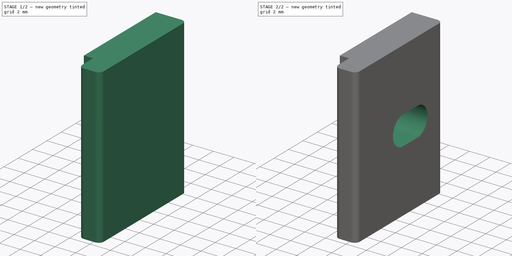
[diagram: build sequence overview — one tinted view per stage of 2, left to right]
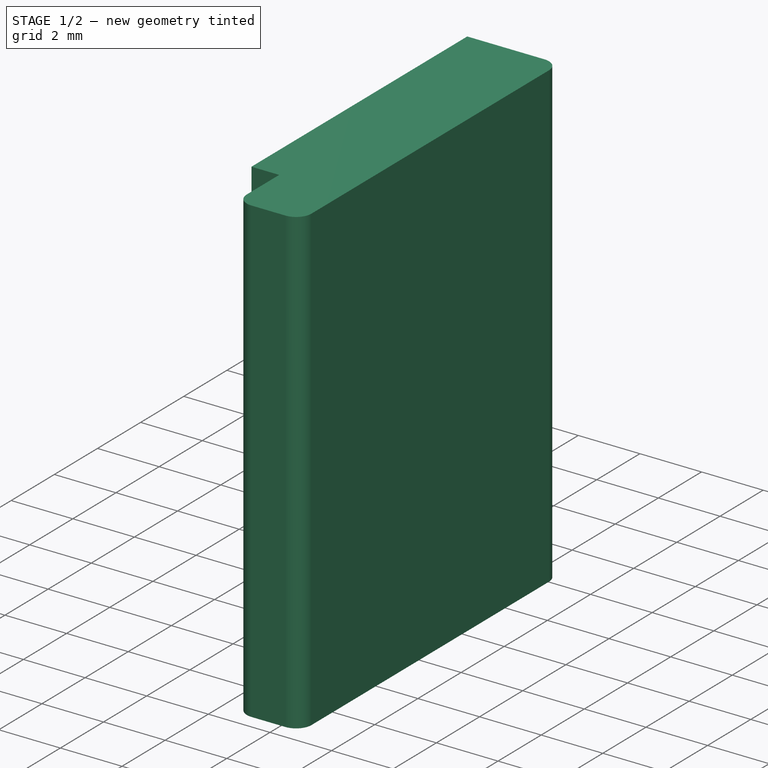
[diagram: stage 1 of 2 — iso view after this stage's code; geometry added in this stage tinted green]
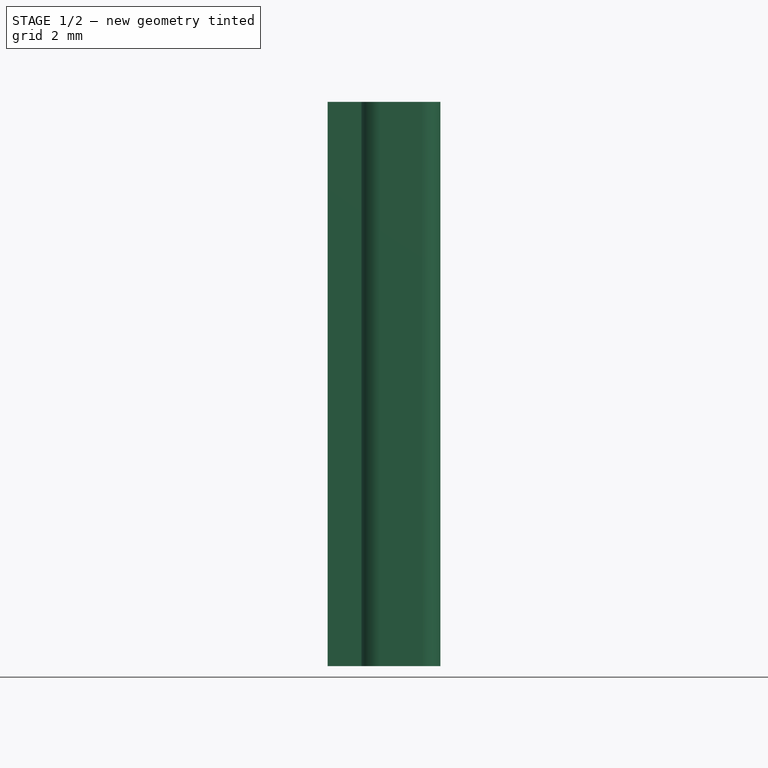
[diagram: stage 1 of 2 — front view after this stage's code; geometry added in this stage tinted green]
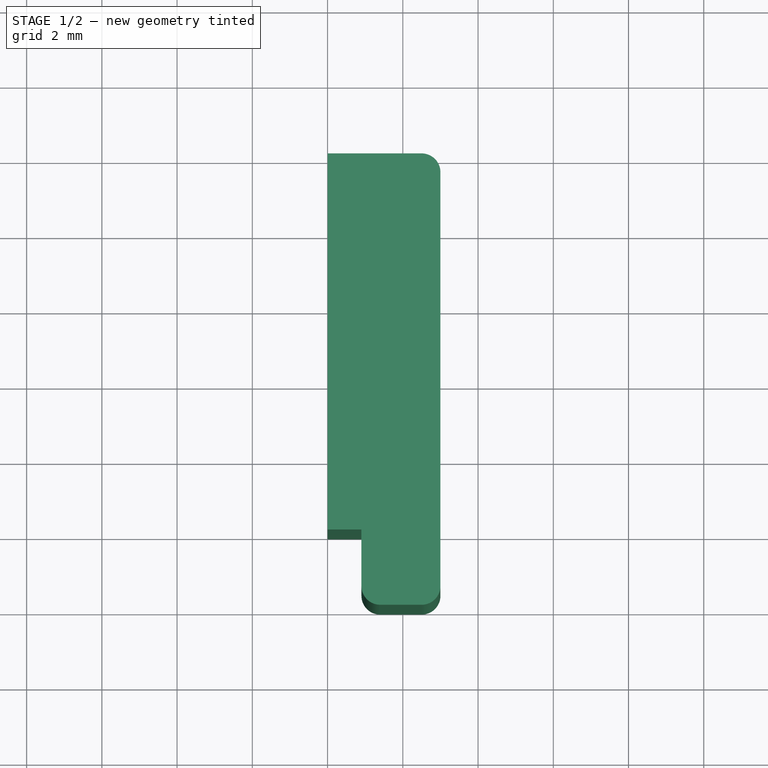
[diagram: stage 1 of 2 — top view after this stage's code; geometry added in this stage tinted green]
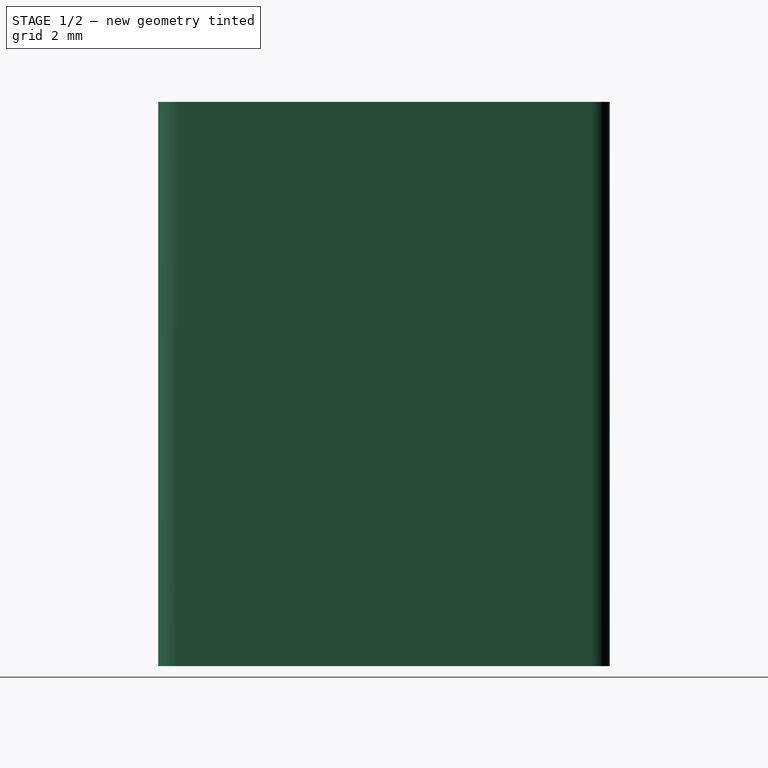
[diagram: stage 1 of 2 — right view after this stage's code; geometry added in this stage tinted green]
FCSTD DOCUMENT  (FreeCAD 0.16R6706 (Git))
Label: mount
License: All rights reserved
LicenseURL: http://en.wikipedia.org/wiki/All_rights_reserved
objects: Sketcher::SketchObject×2, PartDesign::Pad×1, PartDesign::Pocket×1
note: 6 computed .brp shape members not serialized (recipe doc carries the construction recipe); baked Part::Feature solids carry a one-line shape summary decoded from their .brp

FEATURE [Sketcher::SketchObject] Sketch
  sketch-geometry (9):
    g0: LineSegment StartX=0 StartY=10 StartZ=0 EndX=0 EndY=0 EndZ=0
    g1: LineSegment StartX=0 StartY=0 StartZ=0 EndX=0.9 EndY=0 EndZ=0
    g2: LineSegment StartX=0.9 StartY=0 StartZ=0 EndX=0.9 EndY=-1.5 EndZ=0
    g3: LineSegment StartX=1.4 StartY=-2 StartZ=0 EndX=2.5 EndY=-2 EndZ=0
    g4: LineSegment StartX=3 StartY=-1.5 StartZ=0 EndX=3 EndY=9.5 EndZ=0
    g5: LineSegment StartX=2.5 StartY=10 StartZ=0 EndX=0 EndY=10 EndZ=0
    g6: ArcOfCircle CenterX=1.4 CenterY=-1.5 CenterZ=0 NormalX=0 NormalY=0 NormalZ=1 Radius=0.5 StartAngle=3.14159 EndAngle=4.71239
    g7: ArcOfCircle CenterX=2.5 CenterY=-1.5 CenterZ=0 NormalX=0 NormalY=0 NormalZ=1 Radius=0.5 StartAngle=4.71239 EndAngle=6.28319
    g8: ArcOfCircle CenterX=2.5 CenterY=9.5 CenterZ=0 NormalX=0 NormalY=0 NormalZ=1 Radius=0.5 StartAngle=0 EndAngle=1.5708
  constraints (23):
    c: Vertical(g0)
    c: Coincident(g0,g1)
    c: Horizontal(g1)
    c: Coincident(g1,g2)
    c: Vertical(g2)
    c: Horizontal(g3)
    c: Vertical(g4)
    c: Coincident(g0,g5)
    c: DistanceX(g0,g1) = 0.9
    c: DistanceY(g0,g0) = 10
    c: Tangent(g2,g6) = -1.5708
    c: Tangent(g3,g6) = -1.5708
    c: Radius(g6) = 0.5
    c: Tangent(g3,g7) = -1.5708
    c: Tangent(g4,g7) = -1.5708
    c: Tangent(g5,g8) = -1.5708
    c: Tangent(g4,g8) = -1.5708
    c: Radius(g8) = 0.5
    c: Radius(g7) = 0.5
    c: DistanceY(g5,g0) = 0
    c: DistanceX(g0,g4) = 3
    c: DistanceY(g3,g1) = 2
    c: Coincident(g-1,g0)
FEATURE [PartDesign::Pad] Pad
  Length = 15
  Length2 = 100
  Sketch = -> Sketch
  Type = 0
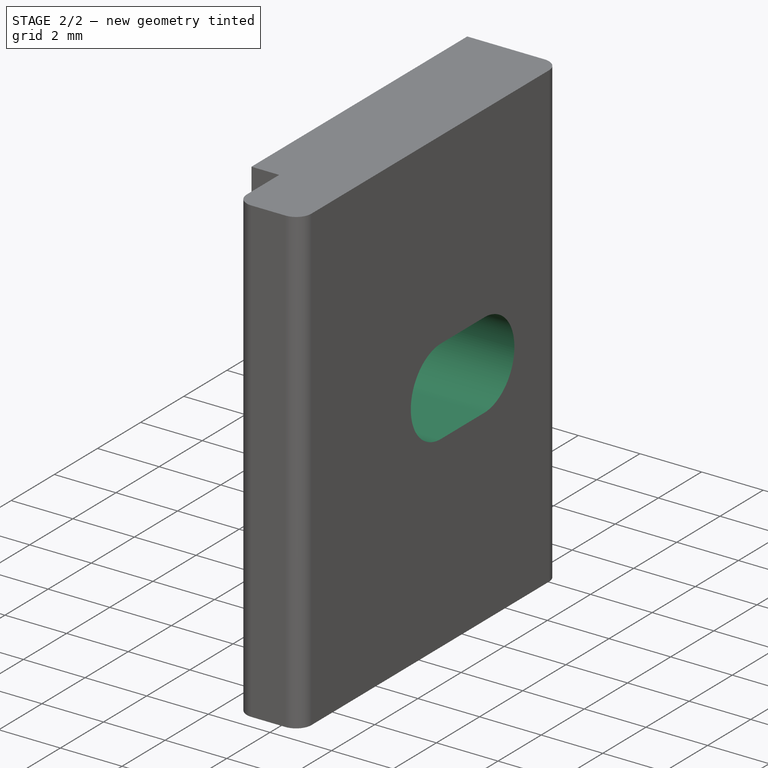
[diagram: stage 2 of 2 — iso view after this stage's code; geometry added in this stage tinted green]
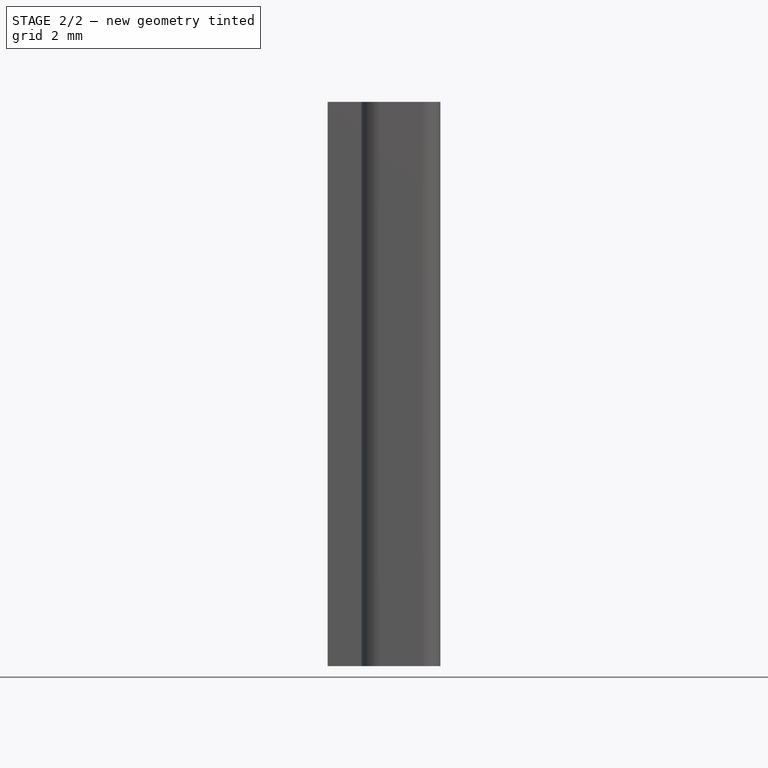
[diagram: stage 2 of 2 — front view after this stage's code; geometry added in this stage tinted green]
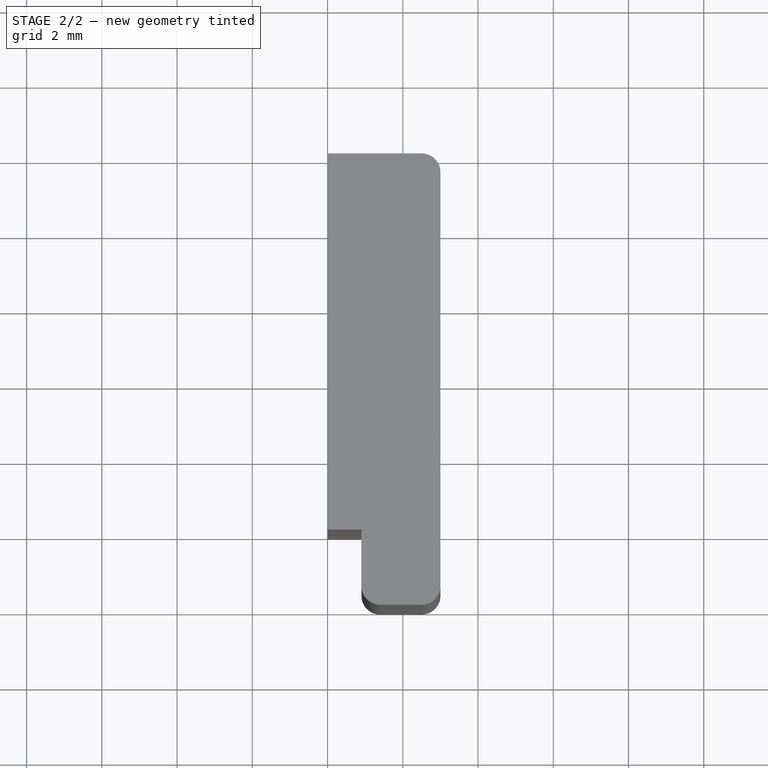
[diagram: stage 2 of 2 — top view after this stage's code; geometry added in this stage tinted green]
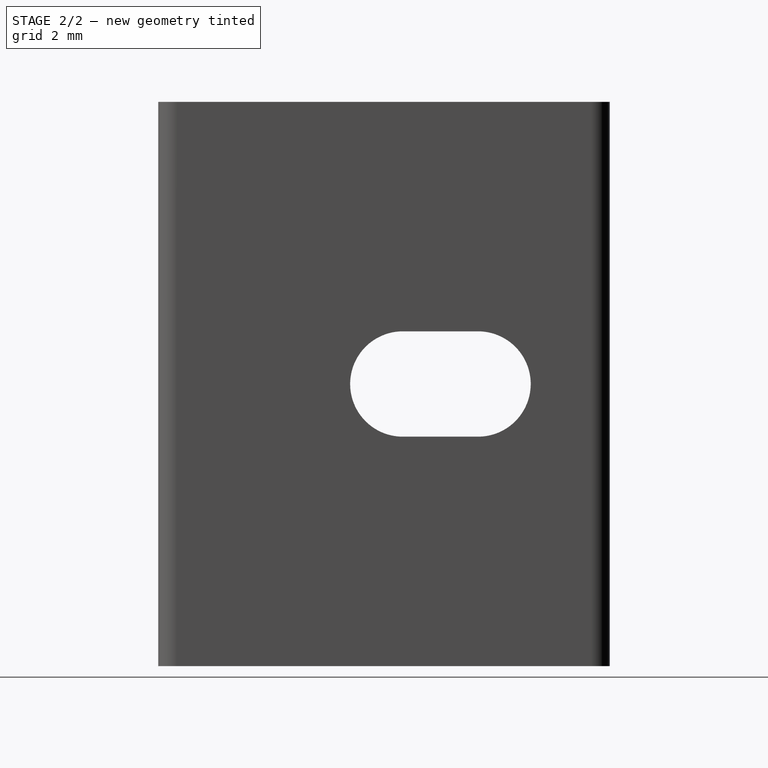
[diagram: stage 2 of 2 — right view after this stage's code; geometry added in this stage tinted green]
FEATURE [Sketcher::SketchObject] Sketch001
  Placement = pos=(3,0,0) rot=(0.57735,0.57735,0.57735;2.0944rad)
  Support = -> Pad [Face7]
  sketch-geometry (4):
    g0: ArcOfCircle CenterX=4.5 CenterY=7.5 CenterZ=0 NormalX=0 NormalY=0 NormalZ=1 Radius=1.4 StartAngle=1.5708 EndAngle=4.71239
    g1: ArcOfCircle CenterX=6.5 CenterY=7.5 CenterZ=0 NormalX=0 NormalY=0 NormalZ=1 Radius=1.4 StartAngle=4.71239 EndAngle=7.85398
    g2: LineSegment StartX=4.5 StartY=6.1 StartZ=0 EndX=6.5 EndY=6.1 EndZ=0
    g3: LineSegment StartX=4.5 StartY=8.9 StartZ=0 EndX=6.5 EndY=8.9 EndZ=0
  constraints (10):
    c: Tangent(g0,g3) = 1.5708
    c: Tangent(g0,g2) = -1.5708
    c: Tangent(g2,g1) = -1.5708
    c: Tangent(g3,g1) = 1.5708
    c: Horizontal(g2)
    c: Equal(g0,g1)
    c: DistanceY(g-1,g0) = 7.5
    c: Radius(g0) = 1.4
    c: DistanceX(g0,g1) = 2
    c: DistanceX(g-1,g0) = 4.5
FEATURE [PartDesign::Pocket] Pocket
  Length = 5
  Sketch = -> Sketch001
  Type = 1
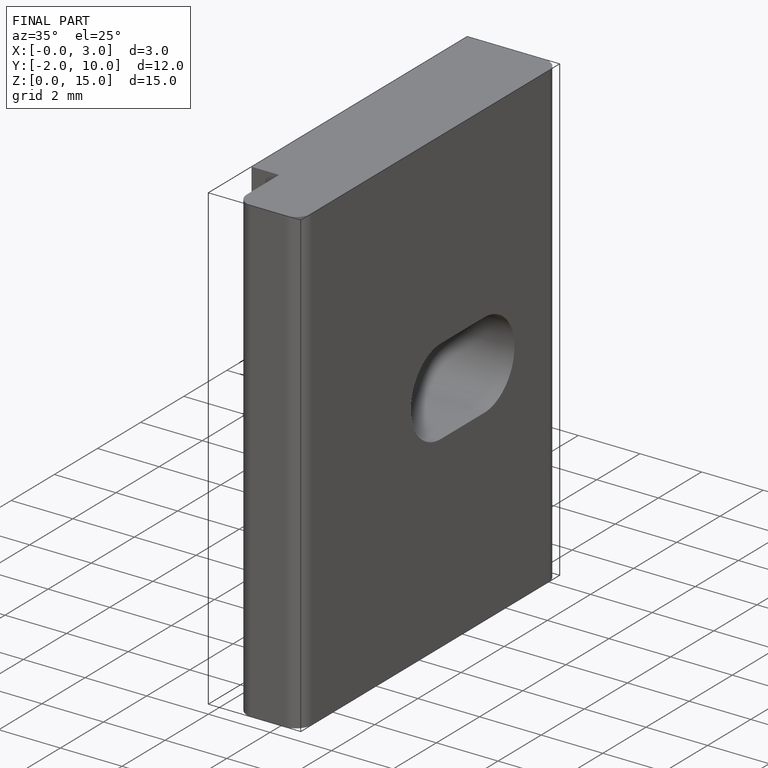
[diagram: finished part — iso view with bounding-box wireframe]
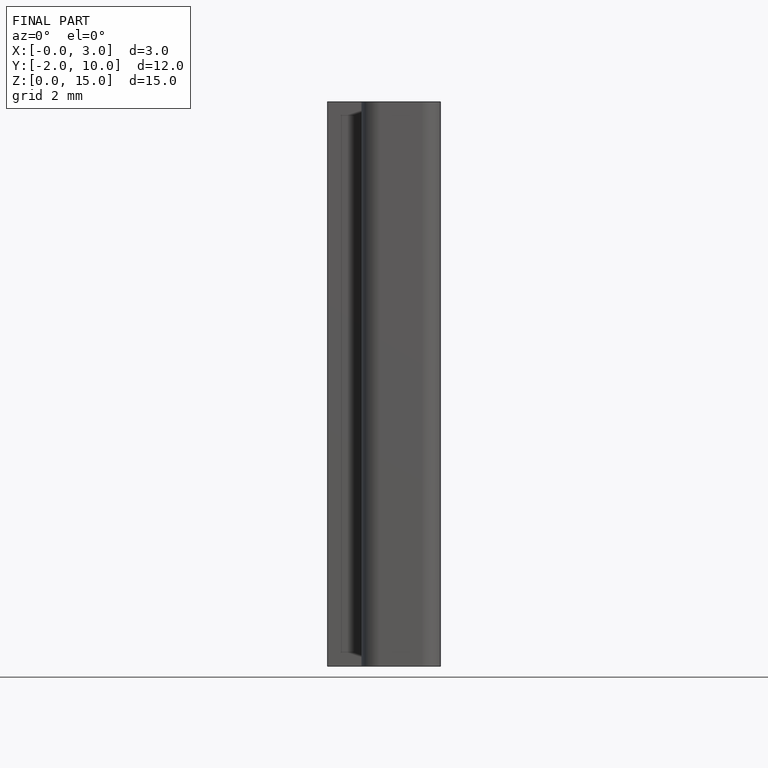
[diagram: finished part — front view with bounding-box wireframe]
